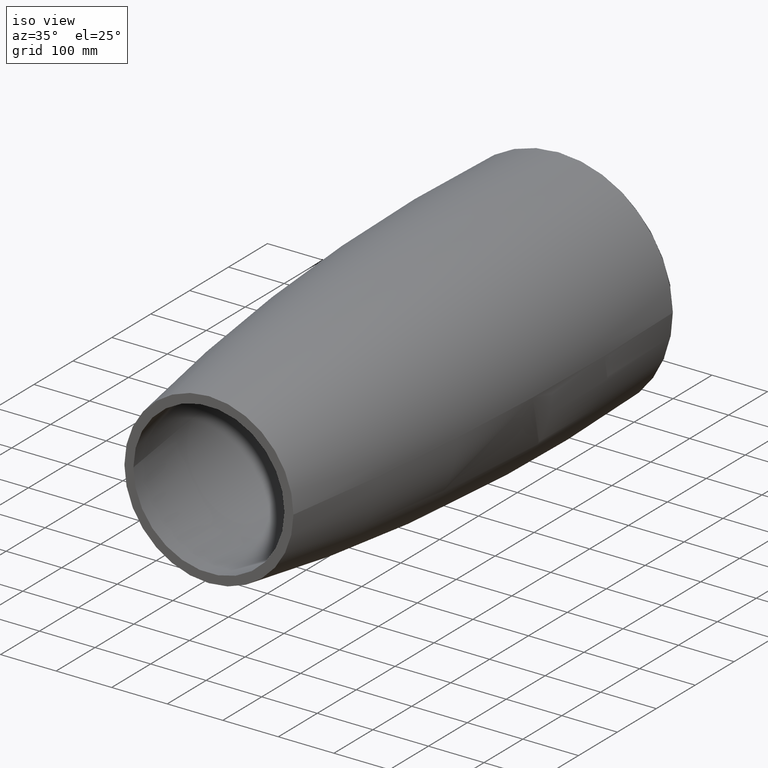
[diagram: clean part render]
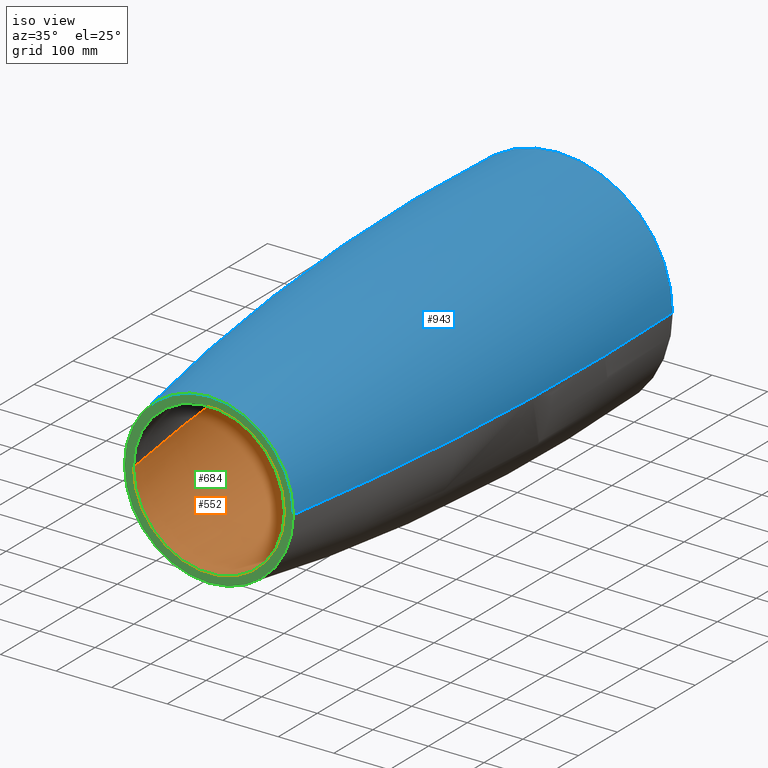
[diagram: same view with three faces highlighted in distinct colors, each labeled with its STEP entity id]
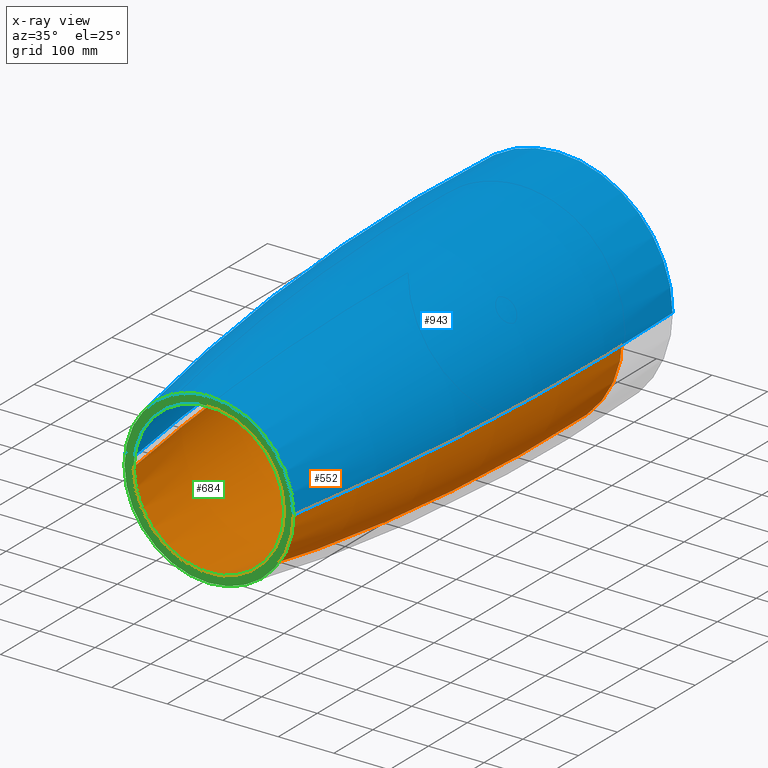
[diagram: x-ray of the same camera — body ghosted, the three highlighted faces saturated]
A machine part, iso view with three faces highlighted in distinct colors.
The next image is the same camera in x-ray (body ghosted, the three faces saturated) — at least one of them is partly hidden behind the body in this view.
Their STEP definitions:

[orange] entity #552 — the highlighted toroidal blend (fillet) surface has major radius 4200.2 mm and minor (blend) radius 4394.2 mm.
#2 = EDGE_CURVE ( 'NONE', #431, #1000, #691, .T. ) ;
#4 = CARTESIAN_POINT ( 'NONE',  ( 30.30050869519323342, 662.5556096073584058, -191.6199930881027456 ) ) ;
#6 = CARTESIAN_POINT ( 'NONE',  ( -35.00000000000000000, 533.8431460890683411, -188.9098872924379293 ) ) ;
#8 = DIRECTION ( 'NONE',  ( -1.224646799147353207E-16, -1.526929428187426516E-32, 1.000000000000000000 ) ) ;
#11 = CARTESIAN_POINT ( 'NONE',  ( 4.564116663480178637, 679.7059114541052622, -193.9122954349662109 ) ) ;
#12 = VERTEX_POINT ( 'NONE', #414 ) ;
#17 = CARTESIAN_POINT ( 'NONE',  ( 35.00000000000002132, 532.6863245399139259, -188.8758142435126217 ) ) ;
#28 = CARTESIAN_POINT ( 'NONE',  ( -34.99999999999999289, 534.9999999999998863, -188.9439612945485578 ) ) ;
#32 = ORIENTED_EDGE ( 'NONE', *, *, #776, .T. ) ;
#35 = CARTESIAN_POINT ( 'NONE',  ( 25.55058032117139888, 511.0528320654178742, -189.6881504941582364 ) ) ;
#40 = CARTESIAN_POINT ( 'NONE',  ( 28.45588741800572308, 514.6139005391772798, -189.3951272473185838 ) ) ;
#45 = CARTESIAN_POINT ( 'NONE',  ( -34.99999999999999289, 647.3169552799420217, -190.7916325862757390 ) ) ;
#46 = CARTESIAN_POINT ( 'NONE',  ( -4.562068721052470188, 500.2938313888170114, -190.9622831796531841 ) ) ;
#53 = CARTESIAN_POINT ( 'NONE',  ( -23.90449383257247007, 509.4284437981337987, -189.8446552507417096 ) ) ;
#62 = CARTESIAN_POINT ( 'NONE',  ( -2.314679681712445536, 679.9981993808085008, -193.9636649340769736 ) ) ;
#73 = CARTESIAN_POINT ( 'NONE',  ( 34.52834350801553143, 650.7554860632964164, -190.8874653843493832 ) ) ;
#76 = CARTESIAN_POINT ( 'NONE',  ( -9.098073842027130098, 678.8017429940372267, -193.7559927284584660 ) ) ;
#82 = CARTESIAN_POINT ( 'NONE',  ( 14.44241358308589263, 676.9019496571232821, -193.4399763228732638 ) ) ;
#88 = CARTESIAN_POINT ( 'NONE',  ( 15.49140216828071992, 676.4059249888705381, -193.3601854431358902 ) ) ;
#89 = VERTEX_POINT ( 'NONE', #599 ) ;
#90 = DIRECTION ( 'NONE',  ( 0.000000000000000000, -0.000000000000000000, -1.000000000000000000 ) ) ;
#93 = DIRECTION ( 'NONE',  ( -1.246832498358330099E-16, 1.000000000000000000, -0.000000000000000000 ) ) ;
#101 = CARTESIAN_POINT ( 'NONE',  ( 31.86976426643045457, 659.4793003279435197, -191.3636953385646962 ) ) ;
#102 = ORIENTED_EDGE ( 'NONE', *, *, #2, .T. ) ;
#105 = CARTESIAN_POINT ( 'NONE',  ( -34.99999999999999289, 534.9999999999998863, -188.9439612945485578 ) ) ;
#114 = CARTESIAN_POINT ( 'NONE',  ( -32.75407922389919690, 657.3492317739232931, -191.2123947855203596 ) ) ;
#115 = CARTESIAN_POINT ( 'NONE',  ( 27.77093061197461665, 513.6902371454383456, -189.4653016491675999 ) ) ;
#120 = CARTESIAN_POINT ( 'NONE',  ( 35.00000000000001421, 571.6411457885188838, -190.0231904583384903 ) ) ;
#123 = CARTESIAN_POINT ( 'NONE',  ( -14.43385247067045007, 503.0941856124473475, -190.5754397963133613 ) ) ;
#125 = CARTESIAN_POINT ( 'NONE',  ( 35.00000000000002842, 646.1584783773434992, -190.7870200080302823 ) ) ;
#127 = CARTESIAN_POINT ( 'NONE',  ( -33.14350997426983270, 656.2623699902384260, -191.1439219197412740 ) ) ;
#128 = CARTESIAN_POINT ( 'NONE',  ( -31.11604866364854161, 518.9649744180754851, -189.1222012518271356 ) ) ;
#131 = CARTESIAN_POINT ( 'NONE',  ( 18.98060823859515267, 505.5879674072404555, -190.2641445541974008 ) ) ;
#138 = CARTESIAN_POINT ( 'NONE',  ( -32.10441068073626525, 521.0488276179704599, -189.0253044838094070 ) ) ;
#146 = ORIENTED_EDGE ( 'NONE', *, *, #521, .F. ) ;
#151 = CARTESIAN_POINT ( 'NONE',  ( -4200.202065928870979, 662.2085823914443381, -5.143764015811891808E-13 ) ) ;
#153 = CARTESIAN_POINT ( 'NONE',  ( -11.29629532166916661, 678.1467522526681933, -193.6450091312315465 ) ) ;
#157 = CARTESIAN_POINT ( 'NONE',  ( 9.076403741425190574, 678.8801459536780385, -193.7689589496291660 ) ) ;
#160 = CARTESIAN_POINT ( 'NONE',  ( 3.989121741992516235, 679.7767311170373432, -193.9247098714362778 ) ) ;
#172 = CARTESIAN_POINT ( 'NONE',  ( 11.26031914899093422, 678.2186095552633560, -193.6554792796534628 ) ) ;
#174 = FACE_OUTER_BOUND ( 'NONE', #745, .T. ) ;
#179 = CARTESIAN_POINT ( 'NONE',  ( 24.32813051142888838, 670.1689022643184899, -192.4617377014847932 ) ) ;
#183 = CARTESIAN_POINT ( 'NONE',  ( 4200.202065928870979, 662.2085823914454750, 0.000000000000000000 ) ) ;
#184 = DIRECTION ( 'NONE',  ( 1.000000000000000000, 1.021185445935654007E-16, 0.000000000000000000 ) ) ;
#194 = CARTESIAN_POINT ( 'NONE',  ( 34.94262406562099699, 647.3133744134071321, -190.8017049766346247 ) ) ;
#196 = CARTESIAN_POINT ( 'NONE',  ( 28.78585355325388306, 515.0826291021397765, -189.3611232981930073 ) ) ;
#202 = CARTESIAN_POINT ( 'NONE',  ( -32.54673756210113567, 657.8855910492117118, -191.2483905008356260 ) ) ;
#203 = CARTESIAN_POINT ( 'NONE',  ( -6.264471305004237323, 500.5604362526182740, -190.9238238536872245 ) ) ;
#210 = CARTESIAN_POINT ( 'NONE',  ( 12.36023230984359778, 502.2353508776776607, -190.6898402636159346 ) ) ;
#236 = CARTESIAN_POINT ( 'NONE',  ( -15.50510993927344039, 676.3990359795520817, -193.3590922207385177 ) ) ;
#244 = CARTESIAN_POINT ( 'NONE',  ( 17.51443177487709946, 675.3242534145384752, -193.1908220561927862 ) ) ;
#246 = CARTESIAN_POINT ( 'NONE',  ( -34.99999999999999289, 645.0000000000000000, -190.7824074239127015 ) ) ;
#249 = CARTESIAN_POINT ( 'NONE',  ( -34.77132399967065624, 530.9640218055219520, -188.8654869720946294 ) ) ;
#252 = DIRECTION ( 'NONE',  ( 1.000000000000000000, 0.000000000000000000, 1.224646799147353454E-16 ) ) ;
#254 = CARTESIAN_POINT ( 'NONE',  ( 33.20137990076592160, 656.3100101563105682, -191.1364033424754041 ) ) ;
#263 = CARTESIAN_POINT ( 'NONE',  ( 34.77283691388021936, 530.4108758733547120, -188.8494139283513391 ) ) ;
#272 = CARTESIAN_POINT ( 'NONE',  ( 135.8988013690210721, -49.99999999999992184, 2.016161779638470888E-14 ) ) ;
#277 = CARTESIAN_POINT ( 'NONE',  ( 15.49485483046954570, 503.5959116425957518, -190.5100502378688248 ) ) ;
#282 = CARTESIAN_POINT ( 'NONE',  ( 27.41495696137151938, 513.2341704612537114, -189.5015703606431998 ) ) ;
#288 = CARTESIAN_POINT ( 'NONE',  ( -29.71144317737345020, 516.4654711687280724, -189.2656560276810751 ) ) ;
#295 = CARTESIAN_POINT ( 'NONE',  ( -34.99999999999999289, 645.0000000000000000, -190.7824074239127015 ) ) ;
#296 = CARTESIAN_POINT ( 'NONE',  ( -5.699620082646822183, 500.4624126262855270, -190.9379320822019679 ) ) ;
#299 = CARTESIAN_POINT ( 'NONE',  ( -15.48277523058222016, 503.5898281684710014, -190.5108291104026819 ) ) ;
#307 = CARTESIAN_POINT ( 'NONE',  ( -27.41738870294700803, 666.7627558115723332, -192.0508151274787281 ) ) ;
#309 = EDGE_LOOP ( 'NONE', ( #716, #102, #689, #370 ) ) ;
#316 = CARTESIAN_POINT ( 'NONE',  ( -21.38023006420112537, 672.8060522251478233, -192.8151693673806619 ) ) ;
#320 = CARTESIAN_POINT ( 'NONE',  ( -23.13869762211320236, 671.3588519739802223, -192.6127063546713316 ) ) ;
#324 = CARTESIAN_POINT ( 'NONE',  ( 34.77082240103231925, 649.0403686710311604, -190.8385516739043055 ) ) ;
#326 = CARTESIAN_POINT ( 'NONE',  ( -7.979197290167747703, 679.0832097619122578, -193.8042214562059939 ) ) ;
#331 = CARTESIAN_POINT ( 'NONE',  ( 31.11515203734981938, 661.0367508448869103, -191.4885731902114401 ) ) ;
#345 = CARTESIAN_POINT ( 'NONE',  ( 33.32659378594305366, 524.2916448986679825, -188.9182243876688574 ) ) ;
#350 = CARTESIAN_POINT ( 'NONE',  ( -20.37910044957693501, 506.5221280516773845, -190.1546463548066299 ) ) ;
#357 = CARTESIAN_POINT ( 'NONE',  ( 23.13241567565551193, 508.6354902880490840, -189.9191129955724477 ) ) ;
#359 = CARTESIAN_POINT ( 'NONE',  ( -34.99999999999999289, 645.0000000000000000, -190.7824074239127015 ) ) ;
#363 = CARTESIAN_POINT ( 'NONE',  ( 2.311455119089476984, 500.0017023161464067, -191.0048279370753903 ) ) ;
#365 = CARTESIAN_POINT ( 'NONE',  ( -9.187730895078067787E-14, 736.8857410418239624, 0.000000000000000000 ) ) ;
#368 = CARTESIAN_POINT ( 'NONE',  ( -31.87111250961816822, 520.5236496063503182, -189.0476637905973405 ) ) ;
#370 = ORIENTED_EDGE ( 'NONE', *, *, #568, .T. ) ;
#374 = CARTESIAN_POINT ( 'NONE',  ( 7.969349124437604459, 500.9144875491597872, -190.8732886471929930 ) ) ;
#390 = CARTESIAN_POINT ( 'NONE',  ( -25.55462066144489341, 668.9428165450118513, -192.3061278972245987 ) ) ;
#393 = CARTESIAN_POINT ( 'NONE',  ( 34.69911176663126895, 649.6156004852184651, -190.8533273756038398 ) ) ;
#401 = DIRECTION ( 'NONE',  ( -1.000000000000000000, 0.000000000000000000, 0.000000000000000000 ) ) ;
#403 = CARTESIAN_POINT ( 'NONE',  ( 23.91005555947514338, 670.5663486046985327, -192.5134160969374477 ) ) ;
#406 = CARTESIAN_POINT ( 'NONE',  ( 20.38694520132452226, 673.4722496031708943, -192.9136968537046641 ) ) ;
#413 = CARTESIAN_POINT ( 'NONE',  ( 33.86601684249630750, 654.1291909283354471, -191.0147749775609611 ) ) ;
#414 = CARTESIAN_POINT ( 'NONE',  ( -34.99999999999999289, 534.9999999999998863, -188.9439612945485578 ) ) ;
#420 = CARTESIAN_POINT ( 'NONE',  ( -34.99999999999999289, 571.6744606013056682, -190.0241717136108264 ) ) ;
#421 = CARTESIAN_POINT ( 'NONE',  ( 35.00000000000001421, 644.9999999999998863, -190.7824074239131846 ) ) ;
#429 = CARTESIAN_POINT ( 'NONE',  ( 35.00000000000001421, 644.9999999999998863, -190.7824074239131846 ) ) ;
#430 = CARTESIAN_POINT ( 'NONE',  ( -34.69973490983488773, 530.3891166336200058, -188.8611581545603428 ) ) ;
#431 = VERTEX_POINT ( 'NONE', #421 ) ;
#433 = CARTESIAN_POINT ( 'NONE',  ( -27.80856811205764956, 513.6252953640243959, -189.4619188786451218 ) ) ;
#438 = CARTESIAN_POINT ( 'NONE',  ( -9.069423217824253314, 501.1181465684805403, -190.8440685342072811 ) ) ;
#446 = CARTESIAN_POINT ( 'NONE',  ( 14.46453754032523165, 503.1083909373214169, -190.5735825225361566 ) ) ;
#450 = EDGE_CURVE ( 'NONE', #913, #524, #621, .T. ) ;
#451 = CARTESIAN_POINT ( 'NONE',  ( -28.78665103962374516, 664.9162018631874389, -191.8518126415432050 ) ) ;
#455 = CARTESIAN_POINT ( 'NONE',  ( -18.99088654659011155, 674.4053889924304031, -193.0518425370517264 ) ) ;
#466 = CARTESIAN_POINT ( 'NONE',  ( -14.47474410568795022, 676.8869851622862370, -193.4375632117753412 ) ) ;
#471 = AXIS2_PLACEMENT_3D ( 'NONE', #151, #8, #252 ) ;
#474 = CARTESIAN_POINT ( 'NONE',  ( 33.14511906891419812, 523.7423583125327013, -188.9326273415816502 ) ) ;
#478 = DIRECTION ( 'NONE',  ( -1.246832498358330099E-16, 1.000000000000000000, -0.000000000000000000 ) ) ;
#483 = CARTESIAN_POINT ( 'NONE',  ( -135.8988013690209016, -49.99999999999995026, 0.000000000000000000 ) ) ;
#484 = AXIS2_PLACEMENT_3D ( 'NONE', #956, #93, #184 ) ;
#495 = EDGE_CURVE ( 'NONE', #1000, #12, #974, .T. ) ;
#497 = CARTESIAN_POINT ( 'NONE',  ( 35.00000000000001421, 534.9999999999998863, -188.9439612945485294 ) ) ;
#498 = CARTESIAN_POINT ( 'NONE',  ( 17.00728497893676305, 504.4045905307760336, -190.4082063216365839 ) ) ;
#506 = CARTESIAN_POINT ( 'NONE',  ( -26.36196498372954267, 511.8621297935884513, -189.6107150726864177 ) ) ;
#507 = AXIS2_PLACEMENT_3D ( 'NONE', #183, #90, #401 ) ;
#513 = CARTESIAN_POINT ( 'NONE',  ( -33.32496699878306146, 655.7134075610637183, -191.1115543510075838 ) ) ;
#515 = CARTESIAN_POINT ( 'NONE',  ( 26.31933879424596867, 511.8998439778398506, -189.6120719240253720 ) ) ;
#520 = CARTESIAN_POINT ( 'NONE',  ( 21.37221395152581493, 507.1876488530148208, -190.0767325236954832 ) ) ;
#521 = EDGE_CURVE ( 'NONE', #524, #89, #727, .T. ) ;
#524 = VERTEX_POINT ( 'NONE', #483 ) ;
#527 = CARTESIAN_POINT ( 'NONE',  ( -2.263149386250633555, 500.0541381564644894, -190.9971325329473757 ) ) ;
#528 = CIRCLE ( 'NONE', #658, 193.3654046113807681 ) ;
#533 = CARTESIAN_POINT ( 'NONE',  ( 35.00000000000001421, 534.9999999999998863, -188.9439612945485294 ) ) ;
#549 = CARTESIAN_POINT ( 'NONE',  ( -9.651814054059704162, 678.6477466361328652, -193.7297467575421308 ) ) ;
#552 = ADVANCED_FACE ( 'NONE', ( #648, #174 ), #898, .F. ) ;
#568 = EDGE_CURVE ( 'NONE', #12, #931, #704, .T. ) ;
#572 = DIRECTION ( 'NONE',  ( -1.000000000000000000, -1.246832498358330099E-16, 0.000000000000000000 ) ) ;
#582 = CARTESIAN_POINT ( 'NONE',  ( -11.25215552873270397, 501.7786612029350408, -190.7507256855638502 ) ) ;
#586 = CARTESIAN_POINT ( 'NONE',  ( 17.50591100199999417, 504.6870729493037970, -190.3731683049760193 ) ) ;
#592 = CARTESIAN_POINT ( 'NONE',  ( -23.05333210284400991, 508.6585271684995746, -189.9228432786016754 ) ) ;
#598 = CARTESIAN_POINT ( 'NONE',  ( 4.582934939380022499, 500.2250989933738765, -190.9717723247777883 ) ) ;
#599 = CARTESIAN_POINT ( 'NONE',  ( -193.3654046113808533, 736.8857410418239624, 0.000000000000000000 ) ) ;
#600 = CARTESIAN_POINT ( 'NONE',  ( -21.29449766043158832, 507.1998490702682716, -190.0781445391236275 ) ) ;
#608 = CARTESIAN_POINT ( 'NONE',  ( -26.32269094339115156, 668.0962966016012388, -192.2034426646901863 ) ) ;
#621 = CIRCLE ( 'NONE', #484, 135.8988013690209868 ) ;
#624 = CARTESIAN_POINT ( 'NONE',  ( -12.37033644053257575, 677.7608427244027780, -193.5805199513604862 ) ) ;
#628 = CARTESIAN_POINT ( 'NONE',  ( -4.588477904365902305, 679.7743713966791574, -193.9238182979605085 ) ) ;
#629 = CARTESIAN_POINT ( 'NONE',  ( 35.00000000000001421, 534.9999999999998863, -188.9439612945485294 ) ) ;
#634 = CARTESIAN_POINT ( 'NONE',  ( 26.36506904814518037, 668.1341379791348345, -192.2034029359535907 ) ) ;
#643 = CARTESIAN_POINT ( 'NONE',  ( 5.703098912887788252, 679.5370252564963494, -193.8828093651873985 ) ) ;
#648 = FACE_BOUND ( 'NONE', #309, .T. ) ;
#656 = DIRECTION ( 'NONE',  ( -1.246832498358330099E-16, 1.000000000000000000, -0.000000000000000000 ) ) ;
#658 = AXIS2_PLACEMENT_3D ( 'NONE', #365, #656, #669 ) ;
#659 = CARTESIAN_POINT ( 'NONE',  ( -30.30089742063287872, 517.4450082623103526, -189.2047192768717707 ) ) ;
#666 = CARTESIAN_POINT ( 'NONE',  ( -33.82579655430239285, 654.0629794010953901, -191.0210846312164108 ) ) ;
#669 = DIRECTION ( 'NONE',  ( -1.000000000000000000, 0.000000000000000000, 0.000000000000000000 ) ) ;
#671 = CARTESIAN_POINT ( 'NONE',  ( -22.61962971147380941, 508.2852408340012857, -189.9618595038654121 ) ) ;
#674 = VERTEX_POINT ( 'NONE', #762 ) ;
#676 = CARTESIAN_POINT ( 'NONE',  ( -33.20320323831437292, 523.6950616736378379, -188.9233485771808887 ) ) ;
#689 = ORIENTED_EDGE ( 'NONE', *, *, #495, .T. ) ;
#690 = CARTESIAN_POINT ( 'NONE',  ( -28.45705630752252446, 665.3844497439275756, -191.9007022624455772 ) ) ;
#691 = B_SPLINE_CURVE_WITH_KNOTS ( 'NONE', 3,
 ( #429, #812, #120, #497 ),
 .UNSPECIFIED., .F., .F.,
 ( 4, 4 ),
 ( 0.4037199385944761909, 0.5138378178679100516 ),
 .UNSPECIFIED. ) ;
#693 = CIRCLE ( 'NONE', #471, 4394.202065928870979 ) ;
#696 = CARTESIAN_POINT ( 'NONE',  ( -27.77293144173313522, 666.3071378693856559, -192.0001342034473453 ) ) ;
#704 = B_SPLINE_CURVE_WITH_KNOTS ( 'NONE', 3,
 ( #105, #420, #741, #246 ),
 .UNSPECIFIED., .F., .F.,
 ( 4, 4 ),
 ( 0.4046033926605477338, 0.5147876762624752356 ),
 .UNSPECIFIED. ) ;
#706 = ORIENTED_EDGE ( 'NONE', *, *, #807, .T. ) ;
#708 = AXIS2_PLACEMENT_3D ( 'NONE', #813, #478, #572 ) ;
#709 = CARTESIAN_POINT ( 'NONE',  ( 18.49322150686079169, 674.7371365535627774, -193.1009947897521215 ) ) ;
#713 = EDGE_CURVE ( 'NONE', #931, #431, #792, .T. ) ;
#715 = CARTESIAN_POINT ( 'NONE',  ( 22.62615856035436934, 671.7092244447723033, -192.6662274259782635 ) ) ;
#716 = ORIENTED_EDGE ( 'NONE', *, *, #713, .T. ) ;
#721 = CARTESIAN_POINT ( 'NONE',  ( 27.81022013013142669, 666.3723616096831392, -191.9990297321743924 ) ) ;
#727 = CIRCLE ( 'NONE', #507, 4394.202065928870979 ) ;
#732 = CARTESIAN_POINT ( 'NONE',  ( 34.42920732487075242, 651.3212150309459503, -190.9068456870361388 ) ) ;
#741 = CARTESIAN_POINT ( 'NONE',  ( -34.99999999999999289, 608.3411182592292334, -190.6364468440791597 ) ) ;
#745 = EDGE_LOOP ( 'NONE', ( #875, #706, #32, #146 ) ) ;
#752 = CARTESIAN_POINT ( 'NONE',  ( 9.641858377335514874, 501.3494006314417106, -190.8120567810920249 ) ) ;
#756 = CARTESIAN_POINT ( 'NONE',  ( -3.988089876362717057, 500.2231554706144721, -190.9725432478256835 ) ) ;
#761 = CARTESIAN_POINT ( 'NONE',  ( 31.44967406622410522, 519.4700285645229769, -189.0860183064782518 ) ) ;
#762 = CARTESIAN_POINT ( 'NONE',  ( 193.3654046113807681, 736.8857410418239624, 2.368043238231606492E-14 ) ) ;
#768 = CARTESIAN_POINT ( 'NONE',  ( -1.116844898015586507, 499.9991632406084250, -191.0051994082693909 ) ) ;
#776 = EDGE_CURVE ( 'NONE', #674, #89, #528, .T. ) ;
#781 = CARTESIAN_POINT ( 'NONE',  ( -31.44819707130952580, 660.5328111732881098, -191.4363598814867942 ) ) ;
#789 = CARTESIAN_POINT ( 'NONE',  ( 29.71149389864256563, 663.5343917198888448, -191.7122839570565702 ) ) ;
#792 = B_SPLINE_CURVE_WITH_KNOTS ( 'NONE', 3,
 ( #295, #45, #922, #829, #666, #513, #127, #114, #202, #781, #866, #451, #690, #696, #307, #608, #390, #320, #316, #455, #871, #942, #1024, #236, #466, #624, #153, #549, #76, #326, #876, #628, #62, #1008, #881, #160, #11, #643, #948, #157, #172, #82, #88, #244, #709, #406, #892, #715, #957, #403, #179, #634, #721, #789, #4, #331, #809, #101, #803, #254, #413, #732, #73, #393, #324, #194, #125, #896 ),
 .UNSPECIFIED., .F., .F.,
 ( 4, 2, 2, 2, 2, 2, 2, 2, 2, 2, 2, 2, 2, 2, 2, 2, 2, 2, 2, 2, 2, 2, 2, 2, 2, 2, 2, 2, 2, 2, 2, 2, 2, 4 ),
 ( 1.971322184885051737E-07, 0.006851398564206089697, 0.01027699928020004913, 0.01198979963819703058, 0.01370259999619401030, 0.02055380142818223274, 0.02226660178617935124, 0.02397940214417646973, 0.02740500286017071019, 0.03425620429215942009, 0.03596900465015659409, 0.03768180500815377504, 0.04110740572414828958, 0.04453300644014280413, 0.04624580679814010997, 0.04795860715613741582, 0.05480980858812651429, 0.05823540930412105660, 0.05994820966211834162, 0.06166101002011564053, 0.06851221145210487085, 0.07193781216809948253, 0.07536341288409408035, 0.07878901360008869204, 0.08050181395808599094, 0.08221461431608328985, 0.08906581574807274915, 0.09249141646406748574, 0.09420421682206470138, 0.09591701718006194477, 0.1027682186120499469, 0.1044810189700468572, 0.1061938193280437953, 0.1096194200440376437 ),
 .UNSPECIFIED. ) ;
#800 = CARTESIAN_POINT ( 'NONE',  ( 32.54838573410541613, 522.1185613446114075, -188.9841182275323774 ) ) ;
#803 = CARTESIAN_POINT ( 'NONE',  ( 32.10295292511839449, 658.9545122022703936, -191.3243187505946139 ) ) ;
#807 = EDGE_CURVE ( 'NONE', #913, #674, #693, .T. ) ;
#809 = CARTESIAN_POINT ( 'NONE',  ( 31.37587719375348172, 660.5205136096438991, -191.4458230343247180 ) ) ;
#812 = CARTESIAN_POINT ( 'NONE',  ( 35.00000000000001421, 608.3077955841015410, -190.6363141669018546 ) ) ;
#813 = CARTESIAN_POINT ( 'NONE',  ( 0.000000000000000000, 662.2085823914449065, 0.000000000000000000 ) ) ;
#816 = CARTESIAN_POINT ( 'NONE',  ( 33.82731294145199996, 525.9426389848379131, -188.8818878060042721 ) ) ;
#829 = CARTESIAN_POINT ( 'NONE',  ( -34.10357583824054473, 652.9529426447390961, -190.9692931515044734 ) ) ;
#830 = CARTESIAN_POINT ( 'NONE',  ( -34.52920058052598051, 529.2496821391354160, -188.8574972478861298 ) ) ;
#837 = CARTESIAN_POINT ( 'NONE',  ( -34.43018223971235869, 528.6841070731526315, -188.8581472613287247 ) ) ;
#843 = CARTESIAN_POINT ( 'NONE',  ( 9.088151959591312945, 501.1955893637692725, -190.8336186227626001 ) ) ;
#847 = CARTESIAN_POINT ( 'NONE',  ( 30.37415228044587323, 517.4602358738439989, -189.1972964908651136 ) ) ;
#852 = CARTESIAN_POINT ( 'NONE',  ( -18.48473439653930583, 505.2575804594110309, -190.3029087529330639 ) ) ;
#866 = CARTESIAN_POINT ( 'NONE',  ( -30.37330469362475327, 662.5409337751767680, -191.6122772708479545 ) ) ;
#871 = CARTESIAN_POINT ( 'NONE',  ( -18.50237550508168383, 674.7151938070338701, -193.0984355415038465 ) ) ;
#875 = ORIENTED_EDGE ( 'NONE', *, *, #450, .F. ) ;
#876 = CARTESIAN_POINT ( 'NONE',  ( -7.413502900216649927, 679.2106988304542483, -193.8262080288203606 ) ) ;
#881 = CARTESIAN_POINT ( 'NONE',  ( 2.263298301339860874, 679.9458718396859922, -193.9544111763600540 ) ) ;
#892 = CARTESIAN_POINT ( 'NONE',  ( 21.30187673952544003, 672.7944766803076391, -192.8162216792532888 ) ) ;
#894 = CARTESIAN_POINT ( 'NONE',  ( 34.10489712259003170, 527.0527643749653635, -188.8666600103206292 ) ) ;
#896 = CARTESIAN_POINT ( 'NONE',  ( 35.00000000000001421, 644.9999999999998863, -190.7824074239131846 ) ) ;
#898 = TOROIDAL_SURFACE ( 'NONE', #708, -4200.202065928870979, 4394.202065928870979 ) ;
#908 = CARTESIAN_POINT ( 'NONE',  ( -33.86754079890607727, 525.8765729790960677, -188.8732705869543338 ) ) ;
#913 = VERTEX_POINT ( 'NONE', #272 ) ;
#914 = CARTESIAN_POINT ( 'NONE',  ( 11.28624509884009619, 501.8498302433280855, -190.7425691468041293 ) ) ;
#922 = CARTESIAN_POINT ( 'NONE',  ( -34.77221038063706970, 649.5941388643847176, -190.8410224280102909 ) ) ;
#926 = CARTESIAN_POINT ( 'NONE',  ( -24.32289851749062493, 509.8260303601892360, -189.8053926005220831 ) ) ;
#931 = VERTEX_POINT ( 'NONE', #359 ) ;
#942 = CARTESIAN_POINT ( 'NONE',  ( -17.51627169438108567, 675.3069442248678342, -193.1886514763434946 ) ) ;
#948 = CARTESIAN_POINT ( 'NONE',  ( 6.268591754497196966, 679.4388239431231113, -193.8657140691833263 ) ) ;
#956 = CARTESIAN_POINT ( 'NONE',  ( 8.880048061353697261E-14, -49.99999999999993605, 0.000000000000000000 ) ) ;
#957 = CARTESIAN_POINT ( 'NONE',  ( 23.05955215897330746, 671.3360208091836512, -192.6155992149851670 ) ) ;
#963 = CARTESIAN_POINT ( 'NONE',  ( -34.94278430950739534, 532.6895464937060751, -188.8860690422276036 ) ) ;
#969 = CARTESIAN_POINT ( 'NONE',  ( 32.75573145444338508, 522.6551439319734982, -188.9656014163628583 ) ) ;
#974 = B_SPLINE_CURVE_WITH_KNOTS ( 'NONE', 3,
 ( #629, #17, #263, #894, #816, #345, #474, #969, #800, #761, #847, #196, #40, #115, #282, #515, #35, #357, #520, #131, #979, #586, #498, #277, #446, #210, #914, #752, #843, #374, #976, #598, #363, #768, #527, #756, #46, #296, #203, #438, #582, #123, #299, #993, #852, #350, #600, #671, #592, #53, #926, #506, #433, #288, #659, #128, #984, #368, #138, #676, #908, #837, #830, #430, #249, #963, #6, #28 ),
 .UNSPECIFIED., .F., .F.,
 ( 4, 2, 2, 2, 2, 2, 2, 2, 2, 2, 2, 2, 2, 2, 2, 2, 2, 2, 2, 2, 2, 2, 2, 2, 2, 2, 2, 2, 2, 2, 2, 2, 2, 4 ),
 ( 1.972268078351093285E-07, 0.006844982897032054862, 0.01026737573214416867, 0.01197857214970038039, 0.01368976856725659212, 0.02053455423748145811, 0.02224575065503754320, 0.02395694707259362830, 0.02737933990770554521, 0.03422412557792937210, 0.03593532199548538086, 0.03764651841304138269, 0.04106891124815325450, 0.04449130408326512631, 0.04620250050082101712, 0.04791369691837690792, 0.05475848258860052664, 0.05818087542371232906, 0.05989207184126824068, 0.06160326825882415230, 0.06844805392904776409, 0.07187044676415961508, 0.07529283959927149383, 0.07871523243438335871, 0.08042642885193940216, 0.08213762526949544562, 0.08898241093971939741, 0.09240480377483137331, 0.09411600019238736126, 0.09582719660994336308, 0.1026719822801672871, 0.1043831786977232751, 0.1060943751152792491, 0.1095167679503908781 ),
 .UNSPECIFIED. ) ;
#976 = CARTESIAN_POINT ( 'NONE',  ( 7.404371217791169357, 500.7873363882376907, -190.8913776455533480 ) ) ;
#979 = CARTESIAN_POINT ( 'NONE',  ( 18.49195715525736361, 505.2783246273210125, -190.3011875671023461 ) ) ;
#984 = CARTESIAN_POINT ( 'NONE',  ( -31.37692123149781054, 519.4815803848188125, -189.0961118200481224 ) ) ;
#993 = CARTESIAN_POINT ( 'NONE',  ( -17.50576765107023292, 504.6707513730777919, -190.3746737712376955 ) ) ;
#1000 = VERTEX_POINT ( 'NONE', #533 ) ;
#1008 = CARTESIAN_POINT ( 'NONE',  ( 1.116256360977213147, 680.0008842348094049, -193.9641385341304840 ) ) ;
#1024 = CARTESIAN_POINT ( 'NONE',  ( -17.01761856803393513, 675.5896654434375250, -193.2323865070905811 ) ) ;

[blue] entity #943 — the highlighted toroidal blend (fillet) surface has major radius 4200.2 mm and minor (blend) radius 4410.2 mm.
#18 = DIRECTION ( 'NONE',  ( 0.000000000000000000, -0.000000000000000000, -1.000000000000000000 ) ) ;
#54 = ORIENTED_EDGE ( 'NONE', *, *, #278, .T. ) ;
#204 = FACE_OUTER_BOUND ( 'NONE', #864, .T. ) ;
#224 = AXIS2_PLACEMENT_3D ( 'NONE', #808, #18, #569 ) ;
#229 = VERTEX_POINT ( 'NONE', #705 ) ;
#233 = VERTEX_POINT ( 'NONE', #633 ) ;
#255 = VERTEX_POINT ( 'NONE', #399 ) ;
#264 = DIRECTION ( 'NONE',  ( -1.000000000000000000, -1.246832498358330099E-16, 0.000000000000000000 ) ) ;
#275 = CIRCLE ( 'NONE', #532, 4410.202065928870979 ) ;
#278 = EDGE_CURVE ( 'NONE', #685, #255, #275, .T. ) ;
#319 = CARTESIAN_POINT ( 'NONE',  ( -4200.202065928870979, 662.2085823914443381, -5.143764015811891808E-13 ) ) ;
#349 = EDGE_CURVE ( 'NONE', #229, #233, #557, .T. ) ;
#352 = CARTESIAN_POINT ( 'NONE',  ( 8.880048061353697261E-14, -49.99999999999993605, 0.000000000000000000 ) ) ;
#399 = CARTESIAN_POINT ( 'NONE',  ( 206.1215591921067301, 847.1257882539825914, 2.524261076998754550E-14 ) ) ;
#407 = ORIENTED_EDGE ( 'NONE', *, *, #626, .T. ) ;
#441 = AXIS2_PLACEMENT_3D ( 'NONE', #352, #660, #650 ) ;
#459 = DIRECTION ( 'NONE',  ( 1.000000000000000000, 0.000000000000000000, 1.224646799147353454E-16 ) ) ;
#472 = AXIS2_PLACEMENT_3D ( 'NONE', #860, #610, #783 ) ;
#509 = DIRECTION ( 'NONE',  ( -1.246832498358330099E-16, 1.000000000000000000, -0.000000000000000000 ) ) ;
#532 = AXIS2_PLACEMENT_3D ( 'NONE', #319, #700, #459 ) ;
#557 = CIRCLE ( 'NONE', #224, 4410.202065928870979 ) ;
#565 = ORIENTED_EDGE ( 'NONE', *, *, #1013, .F. ) ;
#569 = DIRECTION ( 'NONE',  ( -1.000000000000000000, 0.000000000000000000, 0.000000000000000000 ) ) ;
#610 = DIRECTION ( 'NONE',  ( -1.246832498358330099E-16, 1.000000000000000000, -0.000000000000000000 ) ) ;
#626 = EDGE_CURVE ( 'NONE', #229, #685, #867, .T. ) ;
#633 = CARTESIAN_POINT ( 'NONE',  ( -206.1215591921068437, 847.1257882539825914, 0.000000000000000000 ) ) ;
#650 = DIRECTION ( 'NONE',  ( 1.000000000000000000, 1.368506572352135864E-16, 0.000000000000000000 ) ) ;
#660 = DIRECTION ( 'NONE',  ( -1.246832498358330099E-16, 1.000000000000000000, -0.000000000000000000 ) ) ;
#685 = VERTEX_POINT ( 'NONE', #760 ) ;
#700 = DIRECTION ( 'NONE',  ( -1.224646799147353207E-16, -1.526929428187426516E-32, 1.000000000000000000 ) ) ;
#705 = CARTESIAN_POINT ( 'NONE',  ( -152.1123985246396728, -49.99999999999995737, 0.000000000000000000 ) ) ;
#760 = CARTESIAN_POINT ( 'NONE',  ( 152.1123985246398433, -49.99999999999991473, 2.193550348318507100E-14 ) ) ;
#783 = DIRECTION ( 'NONE',  ( -1.000000000000000000, 0.000000000000000000, 0.000000000000000000 ) ) ;
#808 = CARTESIAN_POINT ( 'NONE',  ( 4200.202065928870979, 662.2085823914454750, 0.000000000000000000 ) ) ;
#853 = TOROIDAL_SURFACE ( 'NONE', #929, -4200.202065928870979, 4410.202065928870979 ) ;
#857 = ORIENTED_EDGE ( 'NONE', *, *, #349, .F. ) ;
#860 = CARTESIAN_POINT ( 'NONE',  ( -1.056223962992482816E-13, 847.1257882539825914, 0.000000000000000000 ) ) ;
#864 = EDGE_LOOP ( 'NONE', ( #407, #54, #565, #857 ) ) ;
#867 = CIRCLE ( 'NONE', #441, 152.1123985246397581 ) ;
#895 = CARTESIAN_POINT ( 'NONE',  ( 0.000000000000000000, 662.2085823914449065, 0.000000000000000000 ) ) ;
#929 = AXIS2_PLACEMENT_3D ( 'NONE', #895, #509, #264 ) ;
#943 = ADVANCED_FACE ( 'NONE', ( #204 ), #853, .T. ) ;
#1013 = EDGE_CURVE ( 'NONE', #233, #255, #1020, .T. ) ;
#1020 = CIRCLE ( 'NONE', #472, 206.1215591921062753 ) ;

[green] entity #684 — the highlighted planar face has unit normal (0, -1, 0).
#56 = EDGE_CURVE ( 'NONE', #524, #913, #439, .T. ) ;
#70 = CARTESIAN_POINT ( 'NONE',  ( 8.880048061353697261E-14, -49.99999999999993605, 0.000000000000000000 ) ) ;
#93 = DIRECTION ( 'NONE',  ( -1.246832498358330099E-16, 1.000000000000000000, -0.000000000000000000 ) ) ;
#119 = DIRECTION ( 'NONE',  ( -1.246832498358330099E-16, 1.000000000000000000, -0.000000000000000000 ) ) ;
#122 = CARTESIAN_POINT ( 'NONE',  ( 6.234162491791648129E-15, -49.99999999999997868, 0.000000000000000000 ) ) ;
#182 = ORIENTED_EDGE ( 'NONE', *, *, #626, .F. ) ;
#184 = DIRECTION ( 'NONE',  ( 1.000000000000000000, 1.021185445935654007E-16, 0.000000000000000000 ) ) ;
#198 = ORIENTED_EDGE ( 'NONE', *, *, #450, .T. ) ;
#205 = CARTESIAN_POINT ( 'NONE',  ( 8.880048061353697261E-14, -49.99999999999993605, 0.000000000000000000 ) ) ;
#214 = EDGE_CURVE ( 'NONE', #685, #229, #625, .T. ) ;
#226 = EDGE_LOOP ( 'NONE', ( #182, #404 ) ) ;
#229 = VERTEX_POINT ( 'NONE', #705 ) ;
#272 = CARTESIAN_POINT ( 'NONE',  ( 135.8988013690210721, -49.99999999999992184, 2.016161779638470888E-14 ) ) ;
#352 = CARTESIAN_POINT ( 'NONE',  ( 8.880048061353697261E-14, -49.99999999999993605, 0.000000000000000000 ) ) ;
#404 = ORIENTED_EDGE ( 'NONE', *, *, #214, .F. ) ;
#410 = AXIS2_PLACEMENT_3D ( 'NONE', #122, #437, #591 ) ;
#437 = DIRECTION ( 'NONE',  ( 1.246832498358330099E-16, -1.000000000000000000, 0.000000000000000000 ) ) ;
#439 = CIRCLE ( 'NONE', #578, 135.8988013690209868 ) ;
#441 = AXIS2_PLACEMENT_3D ( 'NONE', #352, #660, #650 ) ;
#450 = EDGE_CURVE ( 'NONE', #913, #524, #621, .T. ) ;
#483 = CARTESIAN_POINT ( 'NONE',  ( -135.8988013690209016, -49.99999999999995026, 0.000000000000000000 ) ) ;
#484 = AXIS2_PLACEMENT_3D ( 'NONE', #956, #93, #184 ) ;
#524 = VERTEX_POINT ( 'NONE', #483 ) ;
#537 = FACE_BOUND ( 'NONE', #613, .T. ) ;
#548 = ORIENTED_EDGE ( 'NONE', *, *, #56, .T. ) ;
#550 = DIRECTION ( 'NONE',  ( -1.246832498358330099E-16, 1.000000000000000000, -0.000000000000000000 ) ) ;
#578 = AXIS2_PLACEMENT_3D ( 'NONE', #205, #119, #820 ) ;
#591 = DIRECTION ( 'NONE',  ( 1.000000000000000000, 1.246832498358330099E-16, 0.000000000000000000 ) ) ;
#613 = EDGE_LOOP ( 'NONE', ( #548, #198 ) ) ;
#621 = CIRCLE ( 'NONE', #484, 135.8988013690209868 ) ;
#625 = CIRCLE ( 'NONE', #638, 152.1123985246397581 ) ;
#626 = EDGE_CURVE ( 'NONE', #229, #685, #867, .T. ) ;
#638 = AXIS2_PLACEMENT_3D ( 'NONE', #70, #550, #720 ) ;
#650 = DIRECTION ( 'NONE',  ( 1.000000000000000000, 1.368506572352135864E-16, 0.000000000000000000 ) ) ;
#660 = DIRECTION ( 'NONE',  ( -1.246832498358330099E-16, 1.000000000000000000, -0.000000000000000000 ) ) ;
#684 = ADVANCED_FACE ( 'NONE', ( #537, #884 ), #751, .T. ) ;
#685 = VERTEX_POINT ( 'NONE', #760 ) ;
#705 = CARTESIAN_POINT ( 'NONE',  ( -152.1123985246396728, -49.99999999999995737, 0.000000000000000000 ) ) ;
#720 = DIRECTION ( 'NONE',  ( 1.000000000000000000, 1.368506572352135864E-16, 0.000000000000000000 ) ) ;
#751 = PLANE ( 'NONE',  #410 ) ;
#760 = CARTESIAN_POINT ( 'NONE',  ( 152.1123985246398433, -49.99999999999991473, 2.193550348318507100E-14 ) ) ;
#820 = DIRECTION ( 'NONE',  ( 1.000000000000000000, 1.021185445935654007E-16, 0.000000000000000000 ) ) ;
#867 = CIRCLE ( 'NONE', #441, 152.1123985246397581 ) ;
#884 = FACE_OUTER_BOUND ( 'NONE', #226, .T. ) ;
#913 = VERTEX_POINT ( 'NONE', #272 ) ;
#956 = CARTESIAN_POINT ( 'NONE',  ( 8.880048061353697261E-14, -49.99999999999993605, 0.000000000000000000 ) ) ;